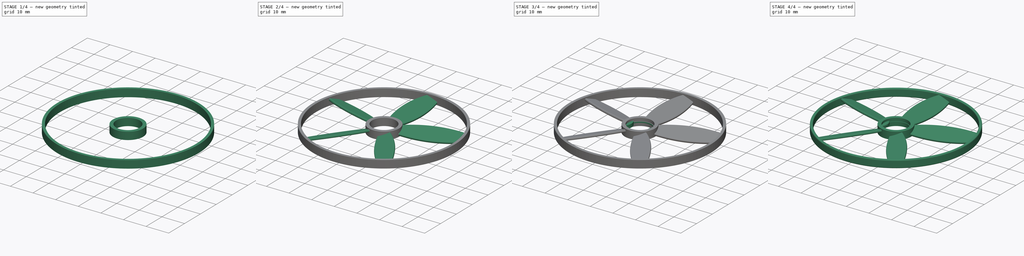
[diagram: build sequence overview — one tinted view per stage of 4, left to right]
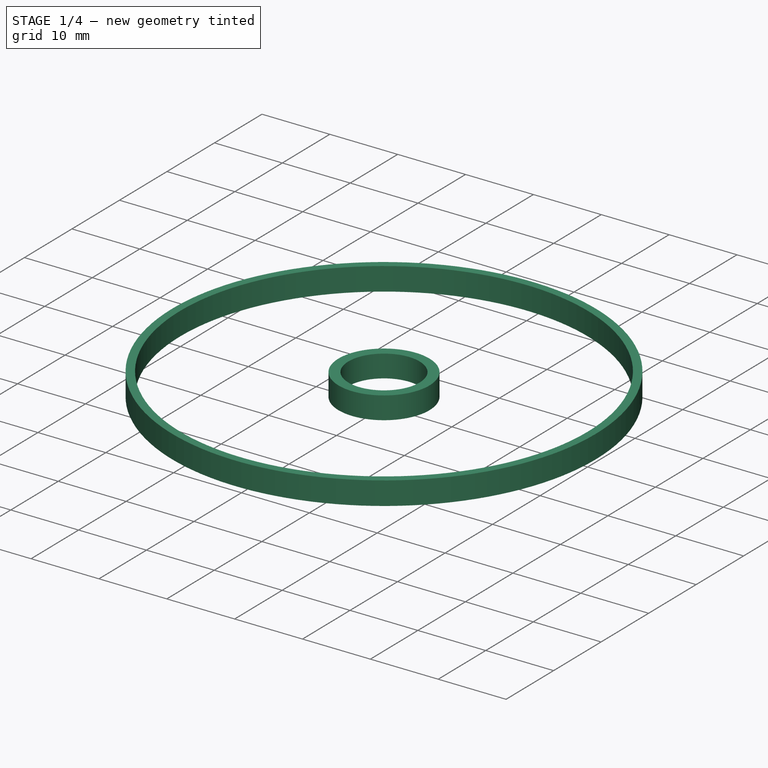
[diagram: stage 1 of 4 — iso view after this stage's code; geometry added in this stage tinted green]
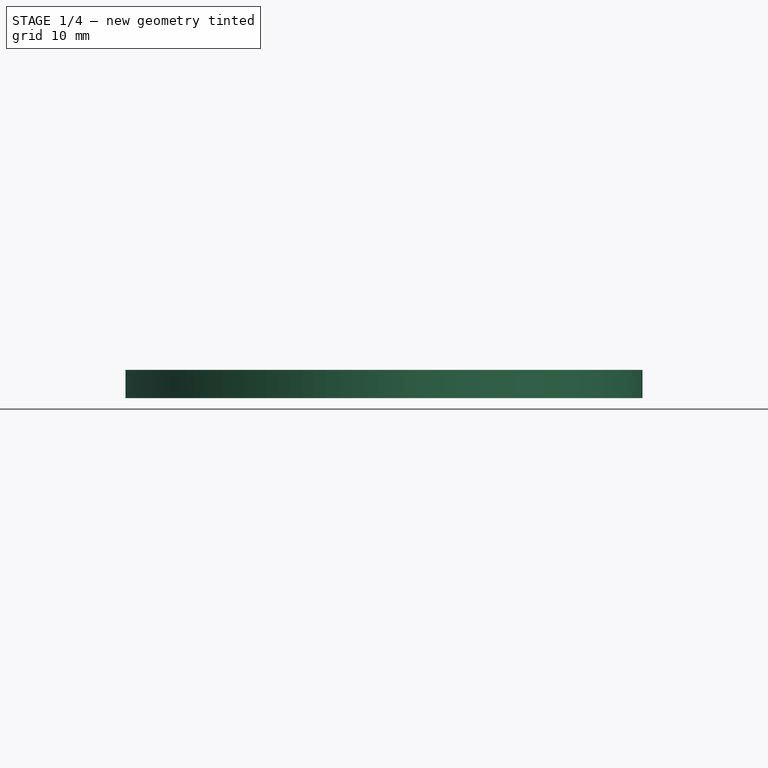
[diagram: stage 1 of 4 — front view after this stage's code; geometry added in this stage tinted green]
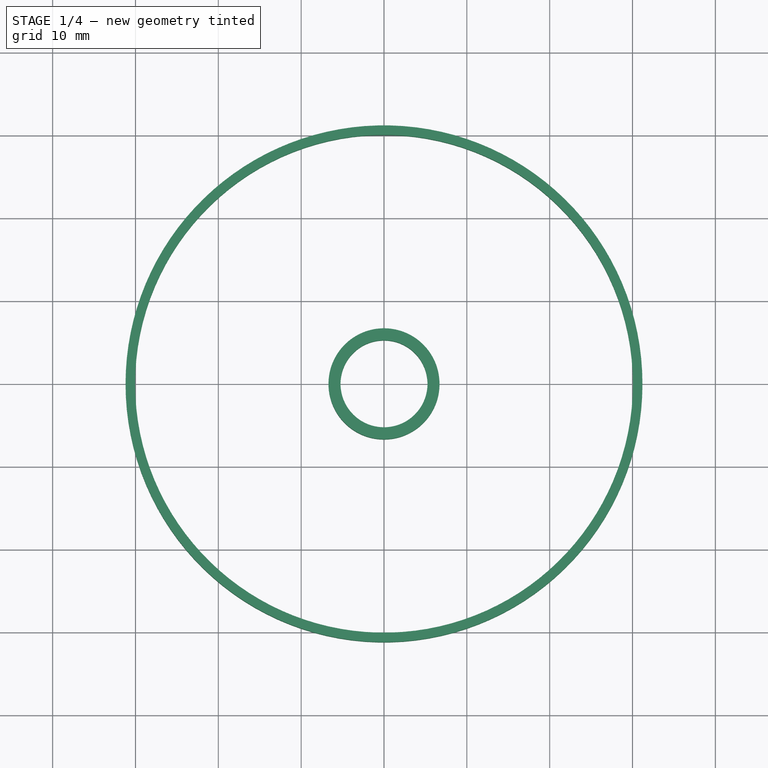
[diagram: stage 1 of 4 — top view after this stage's code; geometry added in this stage tinted green]
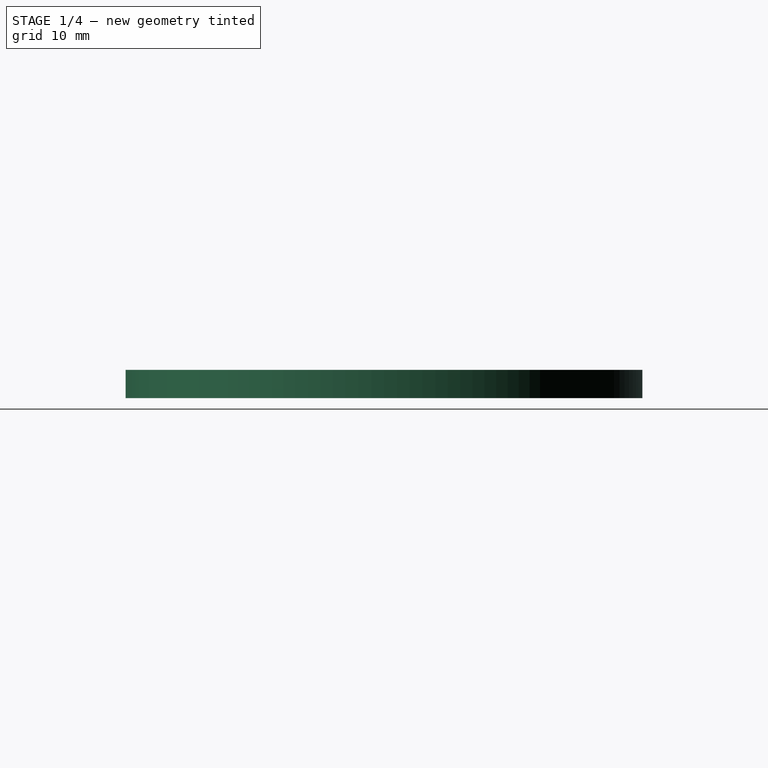
[diagram: stage 1 of 4 — right view after this stage's code; geometry added in this stage tinted green]
FCSTD DOCUMENT  (FreeCAD 1.1R20260325 (Git shallow))
Label: propelerFCStd
License: All rights reserved
LicenseURL: https://en.wikipedia.org/wiki/All_rights_reserved
objects: Sketcher::SketchObject×7, PartDesign::Pad×4, PartDesign::Fillet×2, App::Point×1, PartDesign::AdditiveLoft×1, PartDesign::PolarPattern×1, PartDesign::Mirrored×1, PartDesign::Body×1
note: 40 computed .brp shape members not serialized (recipe doc carries the construction recipe); baked Part::Feature solids carry a one-line shape summary decoded from their .brp

FEATURE [App::Point] Origin001
  Role = Origin
FEATURE [Sketcher::SketchObject] Sketch
  ArcFitTolerance = 1e-06
  AttachmentSupport = -> [Origin]
  ExternalTypes = [0]
  FullyConstrained = true
  MakeInternals = false
  MapMode = 5
  _ExternalGeoVersion = 1
  sketch-geometry (2):
    g0: Circle CenterX=0 CenterY=0 CenterZ=0 NormalX=0 NormalY=0 NormalZ=1 AngleXU=0 Radius=6.7
    g1: Circle CenterX=0 CenterY=0 CenterZ=0 NormalX=0 NormalY=0 NormalZ=1 AngleXU=0 Radius=5.25
  constraints (4):
    c: Coincident(g0,g-1)
    c: Coincident(g1,g0)
    c: Diameter(g1) = 10.5
    c: Diameter(g0) = 13.4
FEATURE [PartDesign::Pad] Pad  label="Inner"
  Direction = (0,0,1)
  Length = 3.3
  Length2 = 10
  Profile = -> Sketch
  ReferenceAxis = -> Sketch [N_Axis]
  Refine = true
  SideType = 0
  Suppressed = false
  Type = 0
  Type2 = 0
FEATURE [Sketcher::SketchObject] Sketch001
  ArcFitTolerance = 1e-06
  AttachmentSupport = -> [Origin]
  ExternalTypes = [0]
  FullyConstrained = true
  MakeInternals = false
  MapMode = 5
  _ExternalGeoVersion = 1
  sketch-geometry (2):
    g0: Circle CenterX=0 CenterY=0 CenterZ=0 NormalX=0 NormalY=0 NormalZ=1 AngleXU=0 Radius=30.05
    g1: Circle CenterX=0 CenterY=0 CenterZ=0 NormalX=0 NormalY=0 NormalZ=1 AngleXU=0 Radius=31.2
  constraints (4):
    c: Coincident(g0,g-1)
    c: Coincident(g1,g0)
    c: Diameter(g0) = 60.1
    c: Diameter(g1) = 62.4
FEATURE [PartDesign::Pad] Pad001
  BaseFeature = -> Pad
  Direction = (0,0,1)
  Length = 3.4
  Length2 = 10
  Profile = -> Sketch001
  ReferenceAxis = -> Sketch001 [N_Axis]
  Refine = true
  SideType = 0
  Suppressed = false
  Type = 0
  Type2 = 0
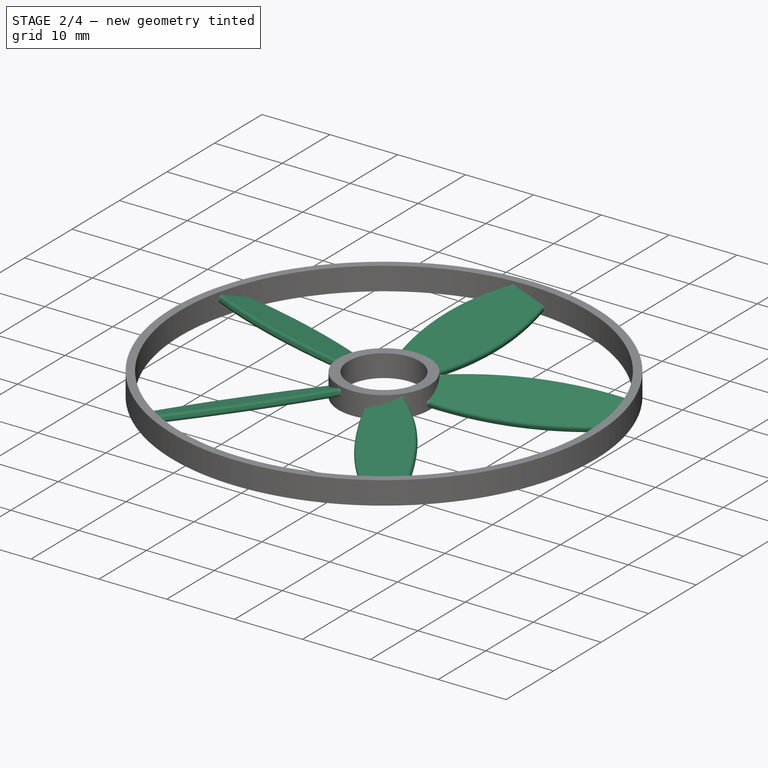
[diagram: stage 2 of 4 — iso view after this stage's code; geometry added in this stage tinted green]
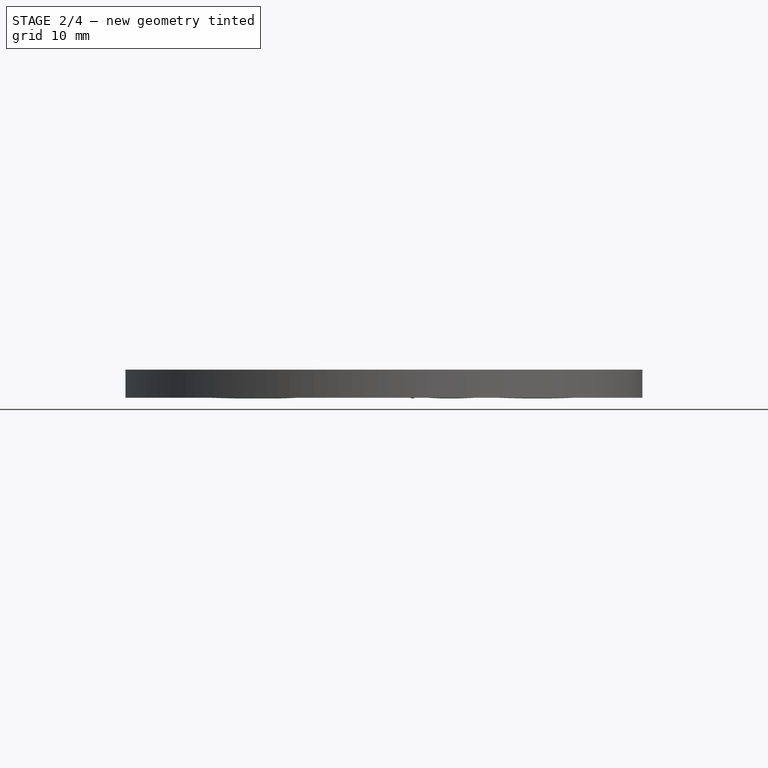
[diagram: stage 2 of 4 — front view after this stage's code; geometry added in this stage tinted green]
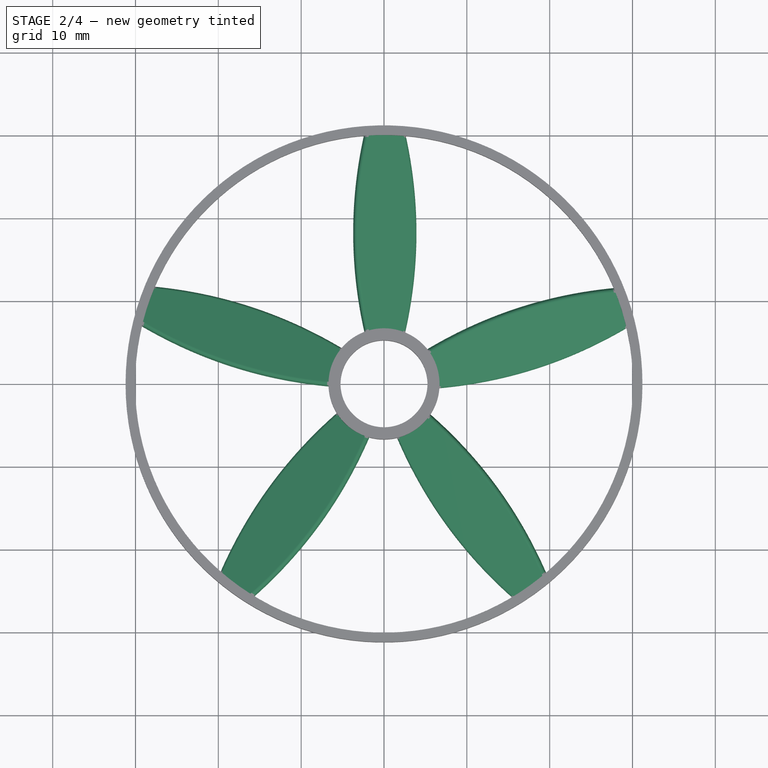
[diagram: stage 2 of 4 — top view after this stage's code; geometry added in this stage tinted green]
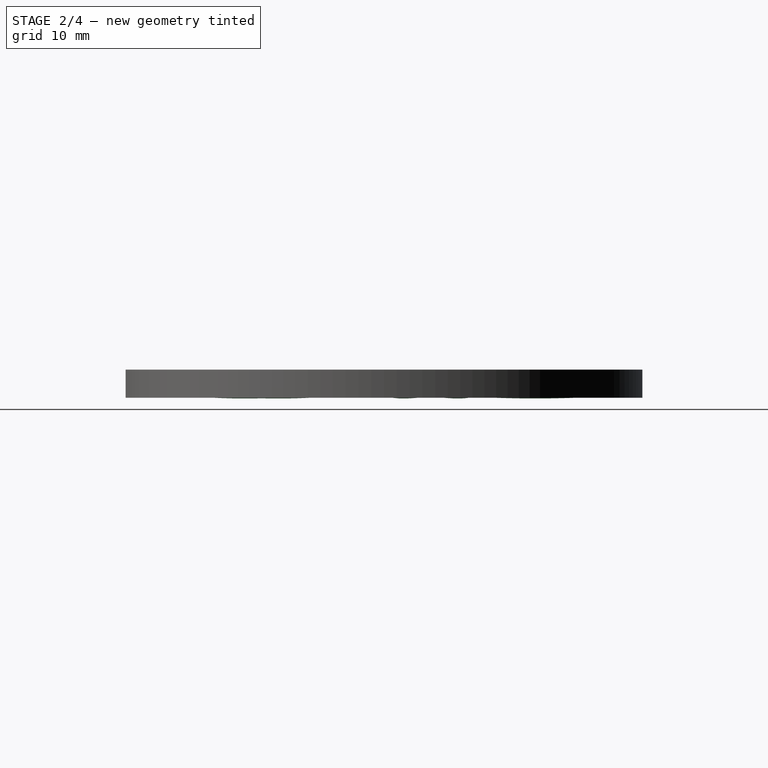
[diagram: stage 2 of 4 — right view after this stage's code; geometry added in this stage tinted green]
FEATURE [Sketcher::SketchObject] Sketch003
  ArcFitTolerance = 1e-06
  AttachmentOffset = pos=(-0.5,0,-6) rot=(0,0,1;-0.349066rad)
  AttachmentSupport = -> [Origin]
  ExternalTypes = [0]
  FullyConstrained = true
  MakeInternals = false
  MapMode = 5
  Placement = pos=(-0.5,6,-1.3e-15) rot=(-0.970288,-0.171088,0.171088;4.68223rad)
  _ExternalGeoVersion = 1
  sketch-geometry (10):
    g0: LineSegment StartX=-2.5 StartY=1.85 StartZ=0 EndX=-2.5 EndY=1.65 EndZ=0
    g1: LineSegment StartX=-2.1 StartY=1.25 StartZ=0 EndX=2.1 EndY=1.25 EndZ=0
    g2: LineSegment StartX=2.5 StartY=1.65 StartZ=0 EndX=2.5 EndY=1.85 EndZ=0
    g3: LineSegment StartX=2.1 StartY=2.25 StartZ=0 EndX=-2.1 EndY=2.25 EndZ=0
    g4: ArcOfCircle CenterX=-2.1 CenterY=1.85 CenterZ=0 NormalX=0 NormalY=0 NormalZ=1 AngleXU=0 Radius=0.4 StartAngle=1.5708 EndAngle=3.14159
    g5: ArcOfCircle CenterX=-2.1 CenterY=1.65 CenterZ=0 NormalX=0 NormalY=0 NormalZ=1 AngleXU=0 Radius=0.4 StartAngle=3.14159 EndAngle=4.71239
    g6: ArcOfCircle CenterX=2.1 CenterY=1.65 CenterZ=0 NormalX=0 NormalY=0 NormalZ=1 AngleXU=0 Radius=0.4 StartAngle=4.71239 EndAngle=6.28319
    g7: ArcOfCircle CenterX=2.1 CenterY=1.85 CenterZ=0 NormalX=0 NormalY=0 NormalZ=1 AngleXU=0 Radius=0.4 StartAngle=0 EndAngle=1.5708
    g8: GeomPoint [constr] X=-2.5 Y=2.25 Z=0
    g9: GeomPoint [constr] X=2.5 Y=1.25 Z=0
  constraints (24):
    c: Tangent(g0,g4) = -1.5708
    c: Tangent(g0,g5) = -1.5708
    c: Tangent(g1,g5) = -1.5708
    c: Tangent(g1,g6) = -1.5708
    c: Tangent(g2,g6) = -1.5708
    c: Tangent(g2,g7) = -1.5708
    c: Tangent(g3,g7) = -1.5708
    c: Tangent(g3,g4) = -1.5708
    c: Vertical(g0)
    c: Vertical(g2)
    c: Horizontal(g1)
    c: Horizontal(g3)
    c: Equal(g4,g5)
    c: Equal(g5,g6)
    c: Equal(g6,g7)
    c: PointOnObject(g8,g0)
    c: PointOnObject(g8,g3)
    c: PointOnObject(g9,g1)
    c: PointOnObject(g9,g2)
    c: Distance(g0,g2) = 5
    c: Distance(g1,g3) = 1
    c: Radius(g5) = 0.4
    c: DistanceX(g5,g-1) = 2.1
    c: DistanceY(g-1,g5) = 1.65
FEATURE [Sketcher::SketchObject] Sketch004
  ArcFitTolerance = 1e-06
  AttachmentOffset = pos=(-0.5,0,-18) rot=(0,0,1;-0.349066rad)
  AttachmentSupport = -> [Origin]
  ExternalTypes = [0]
  FullyConstrained = true
  MakeInternals = false
  MapMode = 5
  Placement = pos=(-0.5,18,-4e-15) rot=(-0.970288,-0.171088,0.171088;4.68223rad)
  _ExternalGeoVersion = 1
  sketch-geometry (10):
    g0: LineSegment StartX=-4 StartY=1.85 StartZ=0 EndX=-4 EndY=1.65 EndZ=0
    g1: LineSegment StartX=-3.6 StartY=1.25 StartZ=0 EndX=3.6 EndY=1.25 EndZ=0
    g2: LineSegment StartX=4 StartY=1.65 StartZ=0 EndX=4 EndY=1.85 EndZ=0
    g3: LineSegment StartX=3.6 StartY=2.25 StartZ=0 EndX=-3.6 EndY=2.25 EndZ=0
    g4: ArcOfCircle CenterX=-3.6 CenterY=1.85 CenterZ=0 NormalX=0 NormalY=0 NormalZ=1 AngleXU=0 Radius=0.4 StartAngle=1.5708 EndAngle=3.14159
    g5: ArcOfCircle CenterX=-3.6 CenterY=1.65 CenterZ=0 NormalX=0 NormalY=0 NormalZ=1 AngleXU=0 Radius=0.4 StartAngle=3.14159 EndAngle=4.71239
    g6: ArcOfCircle CenterX=3.6 CenterY=1.65 CenterZ=0 NormalX=0 NormalY=0 NormalZ=1 AngleXU=0 Radius=0.4 StartAngle=4.71239 EndAngle=6.28319
    g7: ArcOfCircle CenterX=3.6 CenterY=1.85 CenterZ=0 NormalX=0 NormalY=0 NormalZ=1 AngleXU=0 Radius=0.4 StartAngle=0 EndAngle=1.5708
    g8: GeomPoint [constr] X=-4 Y=2.25 Z=0
    g9: GeomPoint [constr] X=4 Y=1.25 Z=0
  constraints (24):
    c: Tangent(g0,g4) = -1.5708
    c: Tangent(g0,g5) = -1.5708
    c: Tangent(g1,g5) = -1.5708
    c: Tangent(g1,g6) = -1.5708
    c: Tangent(g2,g6) = -1.5708
    c: Tangent(g2,g7) = -1.5708
    c: Tangent(g3,g7) = -1.5708
    c: Tangent(g3,g4) = -1.5708
    c: Vertical(g0)
    c: Vertical(g2)
    c: Horizontal(g1)
    c: Horizontal(g3)
    c: Equal(g4,g5)
    c: Equal(g5,g6)
    c: Equal(g6,g7)
    c: PointOnObject(g8,g0)
    c: PointOnObject(g8,g3)
    c: PointOnObject(g9,g1)
    c: PointOnObject(g9,g2)
    c: Distance(g0,g2) = 8
    c: Distance(g1,g3) = 1
    c: Radius(g5) = 0.4
    c: DistanceX(g5,g-1) = 3.6
    c: DistanceY(g-1,g5) = 1.65
FEATURE [Sketcher::SketchObject] Sketch005
  ArcFitTolerance = 1e-06
  AttachmentOffset = pos=(-0.5,0,-30.5) rot=(0,0,1;-0.349066rad)
  AttachmentSupport = -> [Origin]
  ExternalTypes = [0]
  FullyConstrained = true
  MakeInternals = false
  MapMode = 5
  Placement = pos=(-0.5,30.5,-6.8e-15) rot=(-0.970288,-0.171088,0.171088;4.68223rad)
  _ExternalGeoVersion = 1
  sketch-geometry (10):
    g0: LineSegment StartX=-2.5 StartY=1.85 StartZ=0 EndX=-2.5 EndY=1.65 EndZ=0
    g1: LineSegment StartX=-2.1 StartY=1.25 StartZ=0 EndX=2.1 EndY=1.25 EndZ=0
    g2: LineSegment StartX=2.5 StartY=1.65 StartZ=0 EndX=2.5 EndY=1.85 EndZ=0
    g3: LineSegment StartX=2.1 StartY=2.25 StartZ=0 EndX=-2.1 EndY=2.25 EndZ=0
    g4: ArcOfCircle CenterX=-2.1 CenterY=1.85 CenterZ=0 NormalX=0 NormalY=0 NormalZ=1 AngleXU=0 Radius=0.4 StartAngle=1.5708 EndAngle=3.14159
    g5: ArcOfCircle CenterX=-2.1 CenterY=1.65 CenterZ=0 NormalX=0 NormalY=0 NormalZ=1 AngleXU=0 Radius=0.4 StartAngle=3.14159 EndAngle=4.71239
    g6: ArcOfCircle CenterX=2.1 CenterY=1.65 CenterZ=0 NormalX=0 NormalY=0 NormalZ=1 AngleXU=0 Radius=0.4 StartAngle=4.71239 EndAngle=6.28319
    g7: ArcOfCircle CenterX=2.1 CenterY=1.85 CenterZ=0 NormalX=0 NormalY=0 NormalZ=1 AngleXU=0 Radius=0.4 StartAngle=-2.4114e-12 EndAngle=1.5708
    g8: GeomPoint [constr] X=-2.5 Y=2.25 Z=0
    g9: GeomPoint [constr] X=2.5 Y=1.25 Z=0
  constraints (24):
    c: Tangent(g0,g4) = -1.5708
    c: Tangent(g0,g5) = -1.5708
    c: Tangent(g1,g5) = -1.5708
    c: Tangent(g1,g6) = -1.5708
    c: Tangent(g2,g6) = -1.5708
    c: Tangent(g2,g7) = -1.5708
    c: Tangent(g3,g7) = -1.5708
    c: Tangent(g3,g4) = -1.5708
    c: Vertical(g0)
    c: Vertical(g2)
    c: Horizontal(g1)
    c: Horizontal(g3)
    c: Equal(g4,g5)
    c: Equal(g5,g6)
    c: Equal(g6,g7)
    c: PointOnObject(g8,g0)
    c: PointOnObject(g8,g3)
    c: PointOnObject(g9,g1)
    c: PointOnObject(g9,g2)
    c: Distance(g0,g2) = 5
    c: Distance(g1,g3) = 1
    c: Radius(g5) = 0.4
    c: DistanceY(g-1,g5) = 1.65
    c: DistanceX(g5,g-1) = 2.1
FEATURE [PartDesign::AdditiveLoft] AdditiveLoft
  BaseFeature = -> Pad001
  Closed = false
  Profile = -> Sketch003
  Refine = true
  Ruled = false
  Sections = -> [Sketch004,Sketch005]
  Suppressed = false
FEATURE [PartDesign::PolarPattern] PolarPattern
  Angle = 360
  Axis = -> Z_Axis
  BaseFeature = -> AdditiveLoft
  Mode = 0
  Occurrences = 5
  Offset = 120
  Originals = -> [AdditiveLoft]
  Refine = true
  SpacingPattern = [0]
  Spacings = [-1,-1,-1,-1]
  Suppressed = false
  TransformMode = 0
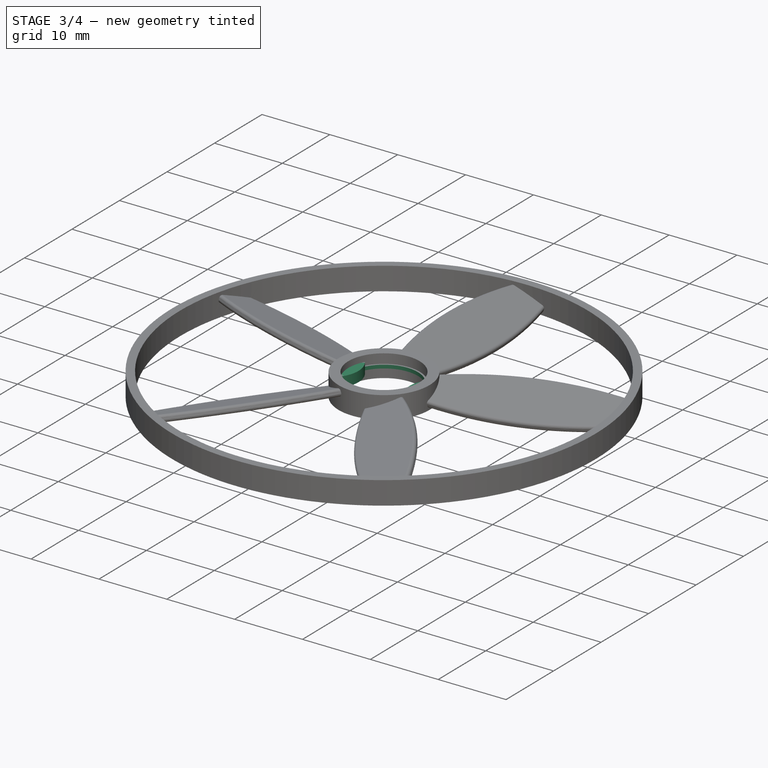
[diagram: stage 3 of 4 — iso view after this stage's code; geometry added in this stage tinted green]
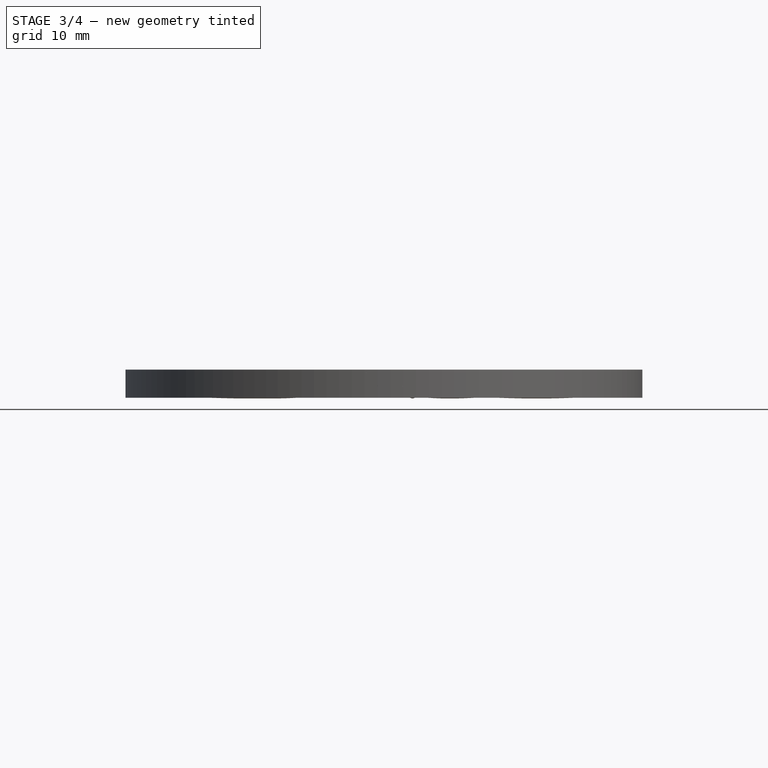
[diagram: stage 3 of 4 — front view after this stage's code; geometry added in this stage tinted green]
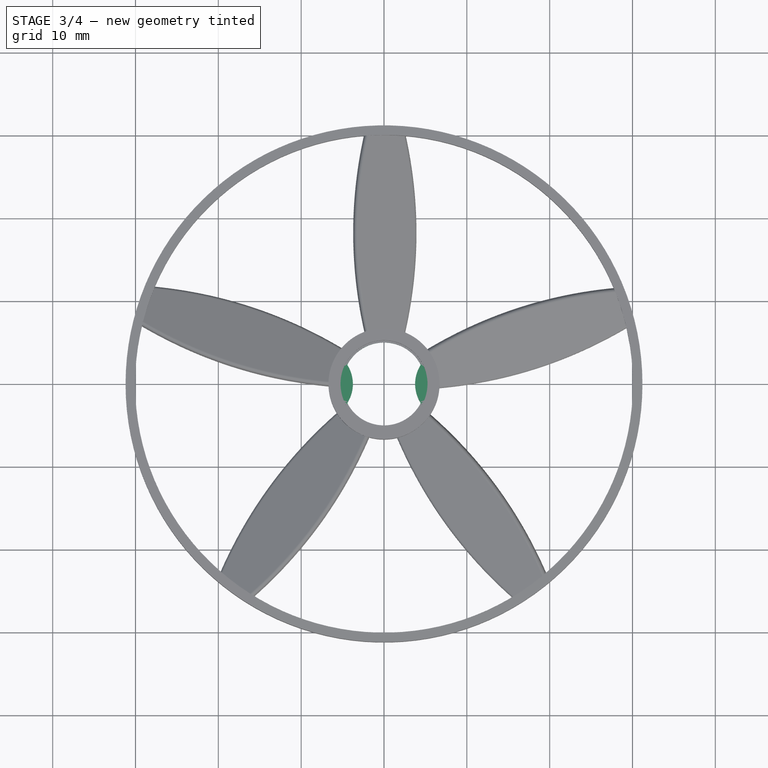
[diagram: stage 3 of 4 — top view after this stage's code; geometry added in this stage tinted green]
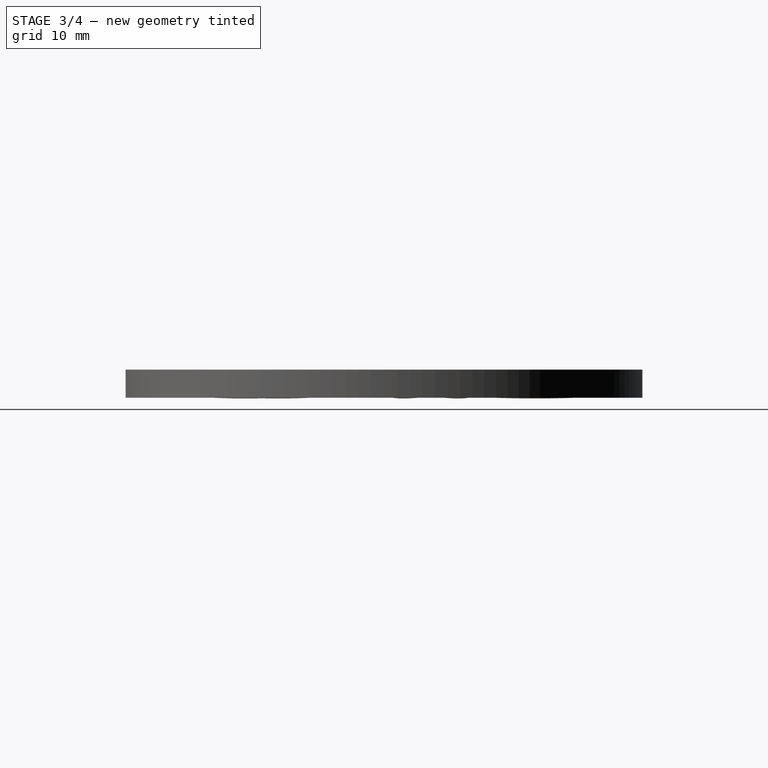
[diagram: stage 3 of 4 — right view after this stage's code; geometry added in this stage tinted green]
FEATURE [Sketcher::SketchObject] Sketch002
  ArcFitTolerance = 1e-06
  AttachmentOffset = pos=(0,0,-1.65) rot=(0,0,1;0rad)
  AttachmentSupport = -> [Pad001]
  ExternalTypes = [0]
  FullyConstrained = false
  MakeInternals = false
  MapMode = 5
  Placement = pos=(0,0,1.65) rot=(0,0,1;0rad)
  _ExternalGeoVersion = 1
  sketch-geometry (3):
    g0: ArcOfCircle CenterX=-8 CenterY=0 CenterZ=0 NormalX=0 NormalY=0 NormalZ=1 AngleXU=0 Radius=4.24255 StartAngle=5.64596 EndAngle=6.91735
    g1: LineSegment StartX=-4.58235 StartY=2.51374 StartZ=0 EndX=-6.35 EndY=-0.0107314 EndZ=0
    g2: LineSegment StartX=-6.35 StartY=-0.0107314 StartZ=0 EndX=-4.59006 EndY=-2.52419 EndZ=0
  constraints (8):
    c: PointOnObject(g0,g-1)
    c: DistanceX(g0,g-1) = 8
    c: Coincident(g0,g1)
    c: Coincident(g1,g2)
    c: Coincident(g2,g0)
    c: Angle(g-1,g1) = 0.959931
    c: Angle(g2,g-1) = 0.959931
    c: DistanceX(g1,g-1) = 6.35
FEATURE [PartDesign::Pad] Pad002
  BaseFeature = -> PolarPattern
  Direction = (0,0,1)
  Length = 0.75
  Length2 = 0.75
  Profile = -> Sketch002
  ReferenceAxis = -> Sketch002 [N_Axis]
  Refine = true
  SideType = 1
  Suppressed = false
  Type = 0
  Type2 = 0
FEATURE [PartDesign::Mirrored] Mirrored
  BaseFeature = -> Pad002
  MirrorPlane = -> Sketch002 [V_Axis]
  Originals = -> [Pad002]
  Refine = true
  Suppressed = false
  TransformMode = 0
FEATURE [Sketcher::SketchObject] Sketch006
  ArcFitTolerance = 1e-06
  AttachmentOffset = pos=(0,0,-1.65) rot=(0,0,1;0rad)
  AttachmentSupport = -> [Mirrored]
  ExternalTypes = [0]
  FullyConstrained = true
  MakeInternals = false
  MapMode = 5
  Placement = pos=(0,0,1.65) rot=(1,0,0;3.14159rad)
  _ExternalGeoVersion = 1
  sketch-geometry (2):
    g0: Circle CenterX=0 CenterY=0 CenterZ=0 NormalX=0 NormalY=0 NormalZ=1 AngleXU=0 Radius=6
    g1: Circle CenterX=0 CenterY=0 CenterZ=0 NormalX=0 NormalY=0 NormalZ=1 AngleXU=0 Radius=5
  constraints (4):
    c: Diameter(g0) = 12
    c: Coincident(g0,g-1)
    c: Diameter(g1) = 10
    c: Coincident(g1,g0)
FEATURE [PartDesign::Pad] Pad003
  BaseFeature = -> Mirrored
  Direction = (0,0,-1)
  Length = 0.25
  Length2 = 0.25
  Profile = -> Sketch006
  ReferenceAxis = -> Sketch006 [N_Axis]
  Refine = true
  SideType = 1
  Suppressed = false
  Type = 0
  Type2 = 0
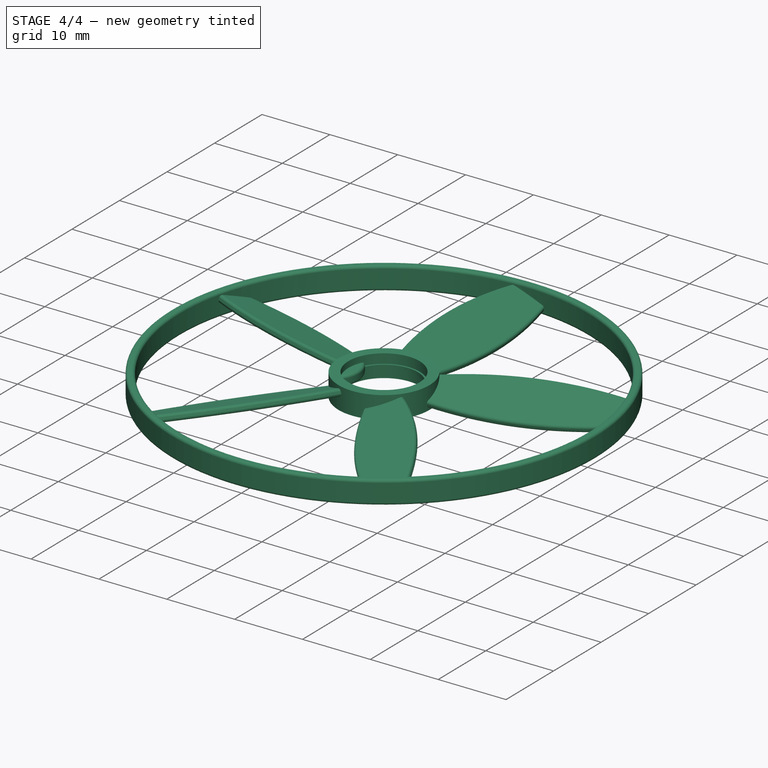
[diagram: stage 4 of 4 — iso view after this stage's code; geometry added in this stage tinted green]
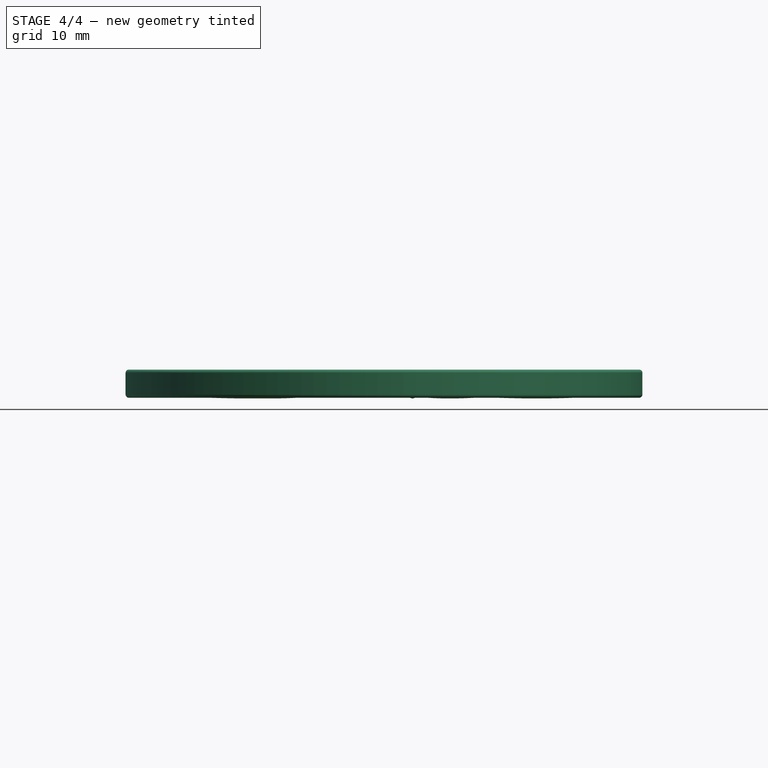
[diagram: stage 4 of 4 — front view after this stage's code; geometry added in this stage tinted green]
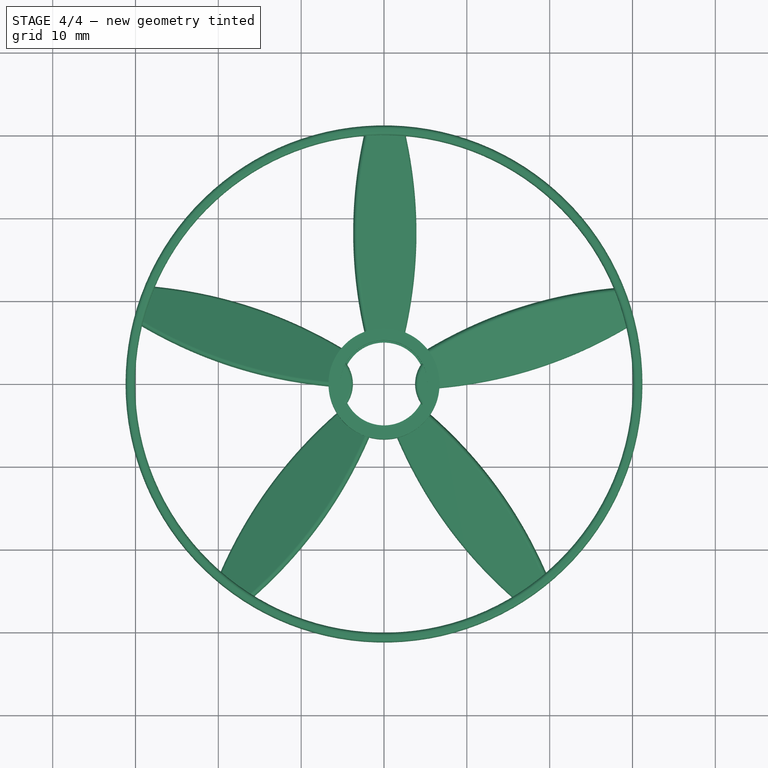
[diagram: stage 4 of 4 — top view after this stage's code; geometry added in this stage tinted green]
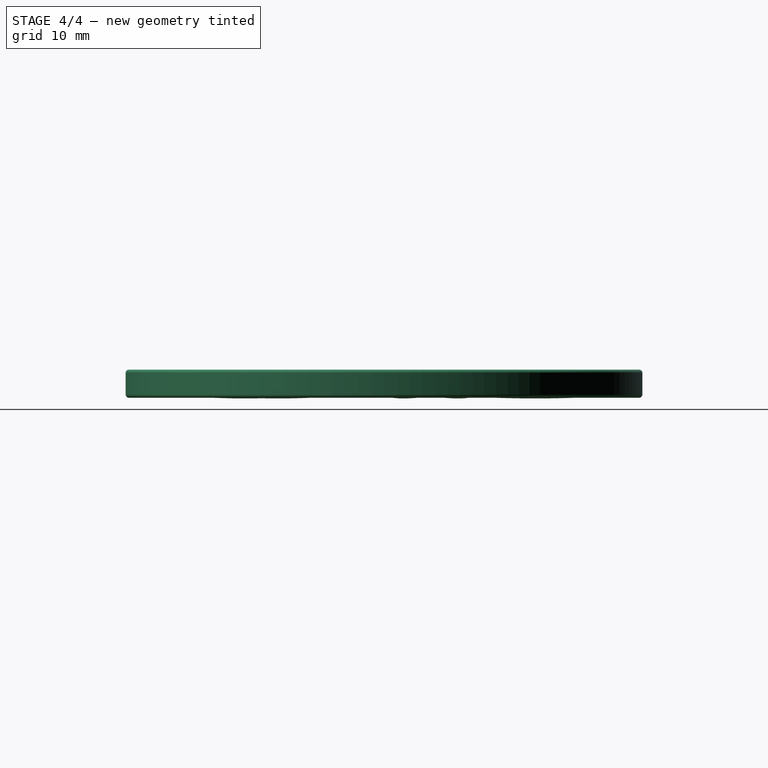
[diagram: stage 4 of 4 — right view after this stage's code; geometry added in this stage tinted green]
FEATURE [PartDesign::Fillet] Fillet
  Base = -> Pad003 [Edge186,Edge168,Edge176,Edge158]
  BaseFeature = -> Pad003
  Radius = 0.4
  Refine = true
  SupportTransform = false
  Suppressed = false
  UseAllEdges = false
FEATURE [PartDesign::Fillet] Fillet001
  Base = -> Fillet [Edge209,Edge208,Edge207,Edge206]
  BaseFeature = -> Fillet
  Radius = 0.4
  Refine = true
  SupportTransform = false
  Suppressed = false
  UseAllEdges = false
FEATURE [PartDesign::Body] Body
  AllowCompound = true
  Group = -> [Sketch,Pad,Sketch001,Pad001,Sketch002,Sketch003,Sketch004,Sketch005,AdditiveLoft,PolarPattern,Pad002,Mirrored,Sketch006,Pad003,Fillet,Fillet001]
  Origin = -> Origin
  Tip = -> Fillet001
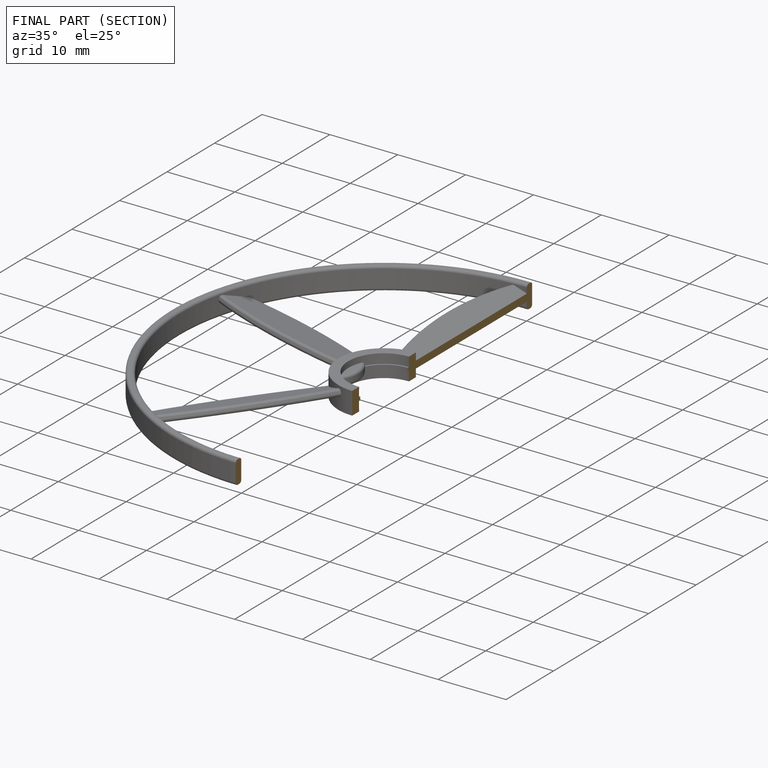
[diagram: finished part — half-section view (interior)]
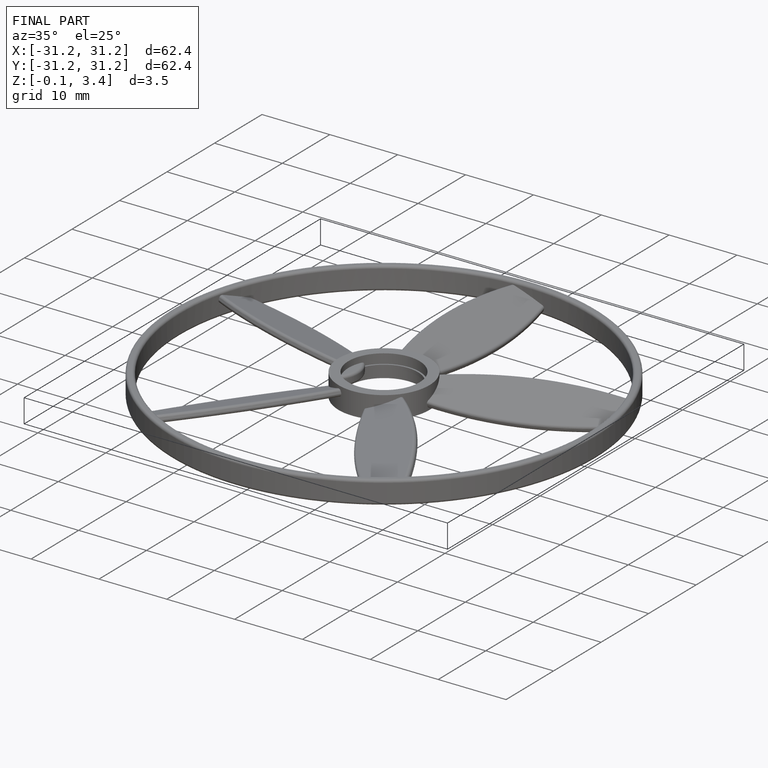
[diagram: finished part — iso view with bounding-box wireframe]
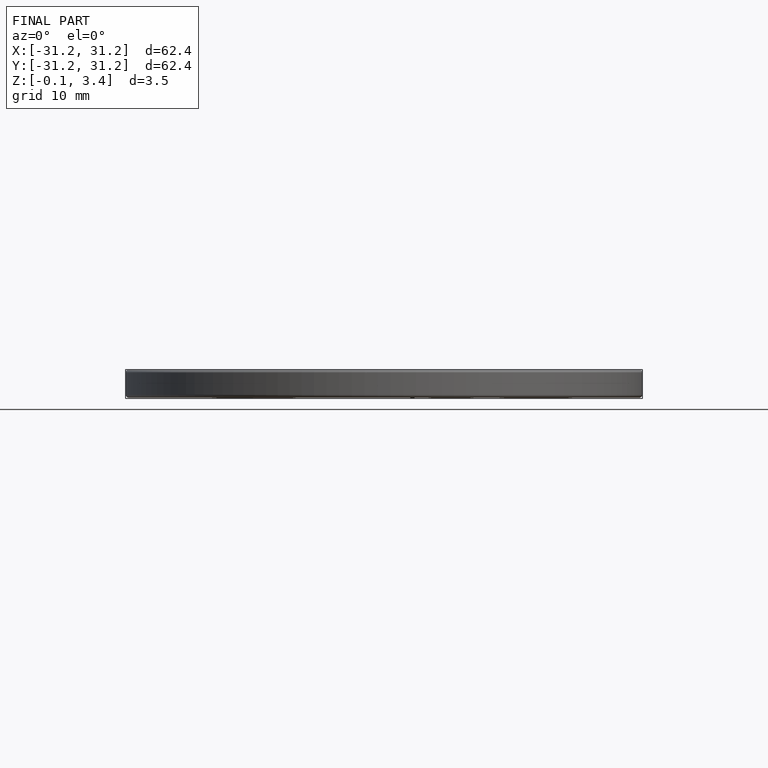
[diagram: finished part — front view with bounding-box wireframe]
